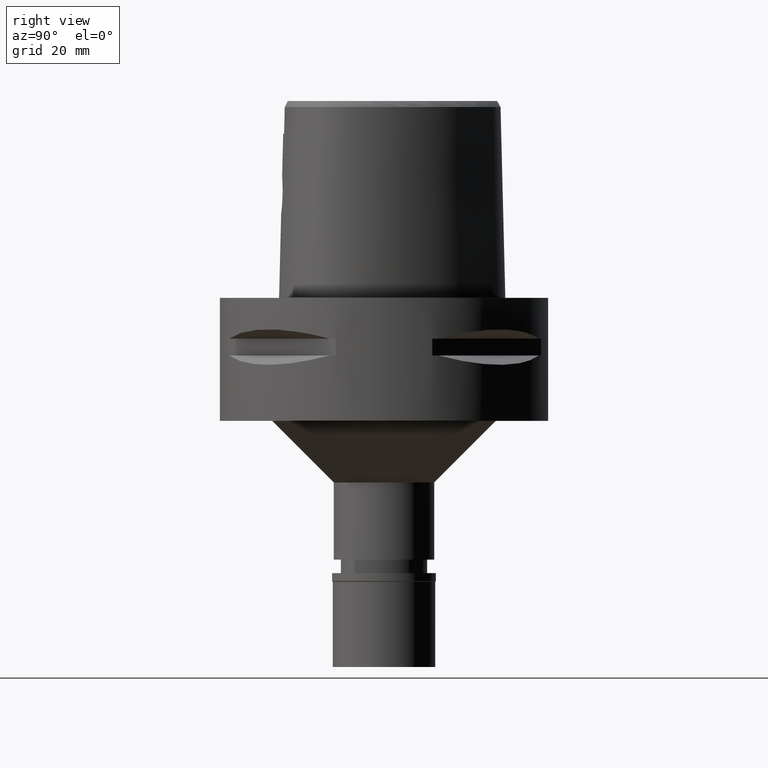
[diagram: clean part render]
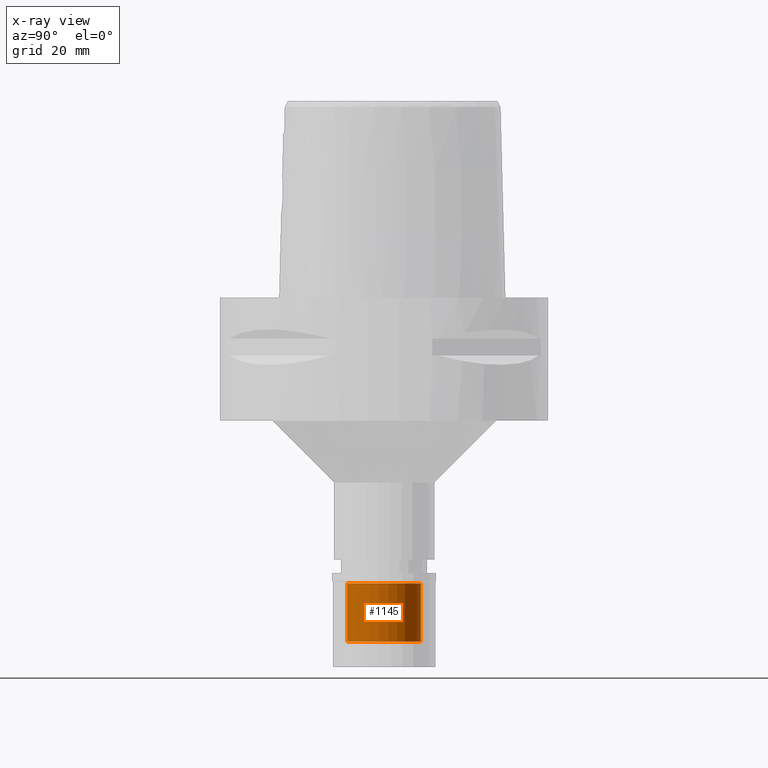
[diagram: x-ray — body ghosted, one internal face saturated and labeled with its STEP entity id]
A machine part, right view, then the same camera in x-ray: the body is ghosted and one INTERNAL B-rep face — a face not visible from any outside direction — is saturated and labeled: STEP entity #1145.
In plain terms, the highlighted cylindrical surface (partial cylindrical patch) has radius 9 mm, axis along (0, 0, -1).
Its self-contained STEP definition (entity closure, byte-faithful):
#191 = EDGE_CURVE ( 'NONE', #4326, #2793, #4644, .T. ) ;
#597 = AXIS2_PLACEMENT_3D ( 'NONE', #614, #2981, #4916 ) ;
#614 = CARTESIAN_POINT ( 'NONE',  ( 0.0000000000000000000, 0.0000000000000000000, -2.500000000000000000 ) ) ;
#716 = EDGE_CURVE ( 'NONE', #2793, #4747, #1979, .T. ) ;
#876 = CARTESIAN_POINT ( 'NONE',  ( 0.0000000000000000000, -9.000000000000000000, -2.500000000000000000 ) ) ;
#1096 = ORIENTED_EDGE ( 'NONE', *, *, #716, .T. ) ;
#1145 = ADVANCED_FACE ( 'NONE', ( #4296 ), #1157, .F. ) ;
#1157 = CYLINDRICAL_SURFACE ( 'NONE', #4852, 9.000000000000000000 ) ;
#1302 = VERTEX_POINT ( 'NONE', #3905 ) ;
#1541 = ORIENTED_EDGE ( 'NONE', *, *, #2368, .F. ) ;
#1694 = CARTESIAN_POINT ( 'NONE',  ( 0.0000000000000000000, 9.000000000000000000, -16.69999999999999929 ) ) ;
#1760 = AXIS2_PLACEMENT_3D ( 'NONE', #3648, #2858, #4443 ) ;
#1855 = ORIENTED_EDGE ( 'NONE', *, *, #191, .T. ) ;
#1911 = CARTESIAN_POINT ( 'NONE',  ( 0.0000000000000000000, 9.000000000000000000, -2.500000000000000000 ) ) ;
#1979 = CIRCLE ( 'NONE', #597, 9.000000000000000000 ) ;
#2368 = EDGE_CURVE ( 'NONE', #1302, #4747, #4440, .T. ) ;
#2374 = CARTESIAN_POINT ( 'NONE',  ( 0.0000000000000000000, -9.000000000000000000, -16.69999999999999929 ) ) ;
#2677 = EDGE_CURVE ( 'NONE', #1302, #4326, #3305, .T. ) ;
#2793 = VERTEX_POINT ( 'NONE', #876 ) ;
#2802 = DIRECTION ( 'NONE',  ( 0.0000000000000000000, 0.0000000000000000000, 1.000000000000000000 ) ) ;
#2858 = DIRECTION ( 'NONE',  ( 0.0000000000000000000, 0.0000000000000000000, -1.000000000000000000 ) ) ;
#2981 = DIRECTION ( 'NONE',  ( 0.0000000000000000000, 0.0000000000000000000, 1.000000000000000000 ) ) ;
#3128 = DIRECTION ( 'NONE',  ( 0.0000000000000000000, 0.0000000000000000000, -1.000000000000000000 ) ) ;
#3305 = CIRCLE ( 'NONE', #1760, 9.000000000000000000 ) ;
#3648 = CARTESIAN_POINT ( 'NONE',  ( 0.0000000000000000000, 0.0000000000000000000, -16.69999999999999929 ) ) ;
#3905 = CARTESIAN_POINT ( 'NONE',  ( 0.0000000000000000000, 9.000000000000000000, -16.69999999999999929 ) ) ;
#3926 = DIRECTION ( 'NONE',  ( 0.0000000000000000000, 0.0000000000000000000, 1.000000000000000000 ) ) ;
#3964 = VECTOR ( 'NONE', #2802, 1000.000000000000000 ) ;
#4295 = EDGE_LOOP ( 'NONE', ( #4746, #1855, #1096, #1541 ) ) ;
#4296 = FACE_OUTER_BOUND ( 'NONE', #4295, .T. ) ;
#4326 = VERTEX_POINT ( 'NONE', #4662 ) ;
#4341 = VECTOR ( 'NONE', #3926, 1000.000000000000000 ) ;
#4440 = LINE ( 'NONE', #1694, #3964 ) ;
#4443 = DIRECTION ( 'NONE',  ( 0.0000000000000000000, 1.000000000000000000, 0.0000000000000000000 ) ) ;
#4644 = LINE ( 'NONE', #2374, #4341 ) ;
#4662 = CARTESIAN_POINT ( 'NONE',  ( 0.0000000000000000000, -9.000000000000000000, -16.69999999999999929 ) ) ;
#4684 = DIRECTION ( 'NONE',  ( 0.0000000000000000000, -1.000000000000000000, 0.0000000000000000000 ) ) ;
#4746 = ORIENTED_EDGE ( 'NONE', *, *, #2677, .T. ) ;
#4747 = VERTEX_POINT ( 'NONE', #1911 ) ;
#4852 = AXIS2_PLACEMENT_3D ( 'NONE', #5023, #3128, #4684 ) ;
#4916 = DIRECTION ( 'NONE',  ( 0.0000000000000000000, -1.000000000000000000, 0.0000000000000000000 ) ) ;
#5023 = CARTESIAN_POINT ( 'NONE',  ( 0.0000000000000000000, 0.0000000000000000000, 0.0000000000000000000 ) ) ;